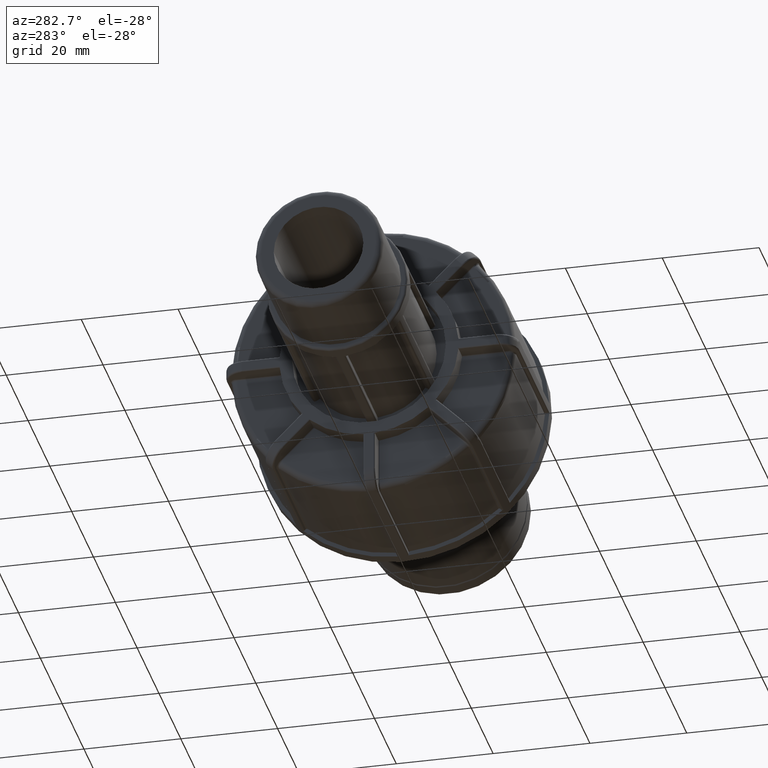
[diagram: clean part render]
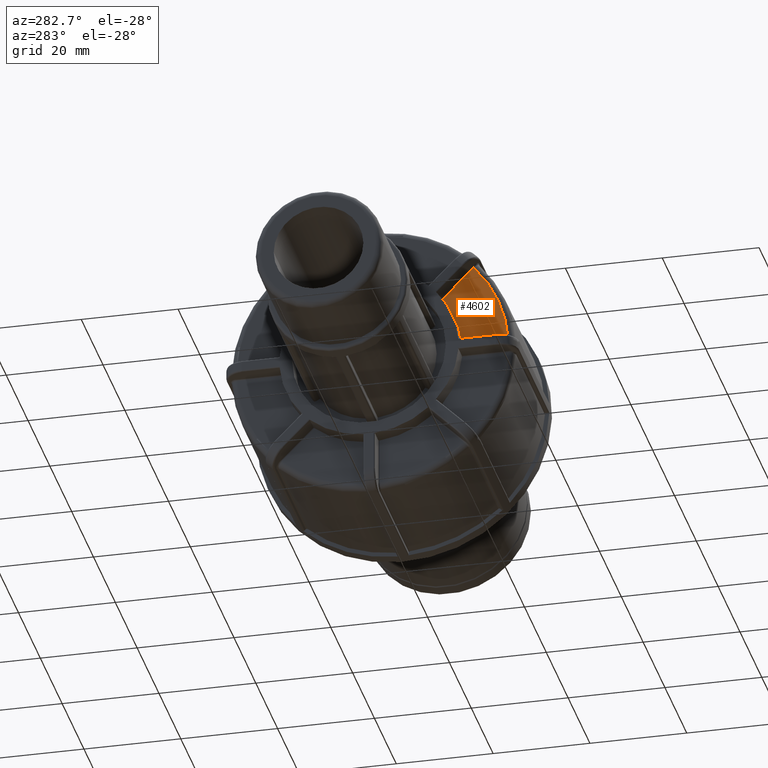
[diagram: same view with one face highlighted and labeled with its STEP entity id]
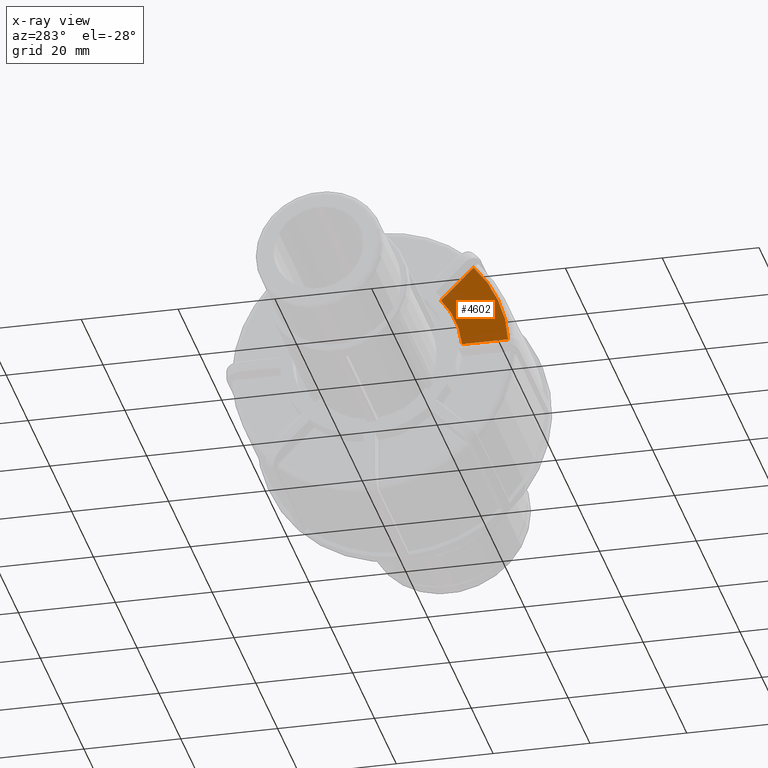
[diagram: x-ray of the same camera — body ghosted, the highlighted face saturated]
A machine part, auxiliary view. The second image highlights one B-rep face of the part: STEP entity #4602.
The next image is the same camera in x-ray: the body ghosted, the highlighted face saturated — about 0% of this face is hidden behind the body in this view.
In plain terms, the highlighted planar face has unit normal (-1, 0, 0).
Its self-contained STEP definition (entity closure, byte-faithful):
#147=PLANE('',#5086);
#352=LINE('',#8349,#631);
#375=LINE('',#8700,#654);
#631=VECTOR('',#5897,9.53280203453431);
#654=VECTOR('',#5998,9.53280203453441);
#1087=FACE_OUTER_BOUND('',#1373,.T.);
#1373=EDGE_LOOP('',(#4262,#4263,#4264,#4265));
#1741=CIRCLE('',#4956,18.5087);
#1799=CIRCLE('',#5078,28.02045);
#2144=VERTEX_POINT('',#8334);
#2146=VERTEX_POINT('',#8347);
#2179=VERTEX_POINT('',#8681);
#2180=VERTEX_POINT('',#8689);
#2724=EDGE_CURVE('',#2146,#2144,#352,.T.);
#2784=EDGE_CURVE('',#2180,#2179,#375,.T.);
#2785=EDGE_CURVE('',#2180,#2144,#1741,.T.);
#2937=EDGE_CURVE('',#2179,#2146,#1799,.T.);
#4262=ORIENTED_EDGE('',*,*,#2724,.F.);
#4263=ORIENTED_EDGE('',*,*,#2937,.F.);
#4264=ORIENTED_EDGE('',*,*,#2784,.F.);
#4265=ORIENTED_EDGE('',*,*,#2785,.T.);
#4602=ADVANCED_FACE('',(#1087),#147,.T.);
#4956=AXIS2_PLACEMENT_3D('',#8702,#6001,#6002);
#5078=AXIS2_PLACEMENT_3D('',#9493,#6304,#6305);
#5086=AXIS2_PLACEMENT_3D('',#9501,#6320,#6321);
#5897=DIRECTION('',(0.,1.,-2.22044604925031E-16));
#5998=DIRECTION('',(0.,-0.707106781186547,0.707106781186548));
#6001=DIRECTION('center_axis',(1.,0.,0.));
#6002=DIRECTION('ref_axis',(0.,0.,-1.));
#6304=DIRECTION('center_axis',(1.,0.,0.));
#6305=DIRECTION('ref_axis',(0.,-1.,1.83697019872103E-16));
#6320=DIRECTION('center_axis',(-1.,0.,0.));
#6321=DIRECTION('ref_axis',(0.,0.,1.));
#8334=CARTESIAN_POINT('',(-70.4,-18.4467969967688,1.51250000000001));
#8347=CARTESIAN_POINT('',(-70.4,-27.9795990313032,1.51250000000001));
#8349=CARTESIAN_POINT('',(-70.4,6.73895,1.5125));
#8681=CARTESIAN_POINT('',(-70.4,-20.8540632164597,18.7150652033705));
#8689=CARTESIAN_POINT('',(-70.4,-14.1133542541315,11.9743562410422));
#8700=CARTESIAN_POINT('',(-70.4,-4.42030465480136,2.28130664171205));
#8702=CARTESIAN_POINT('Origin',(-70.4,0.,0.));
#9493=CARTESIAN_POINT('Origin',(-70.4,0.,0.));
#9501=CARTESIAN_POINT('Origin',(-70.4,29.3425,0.));